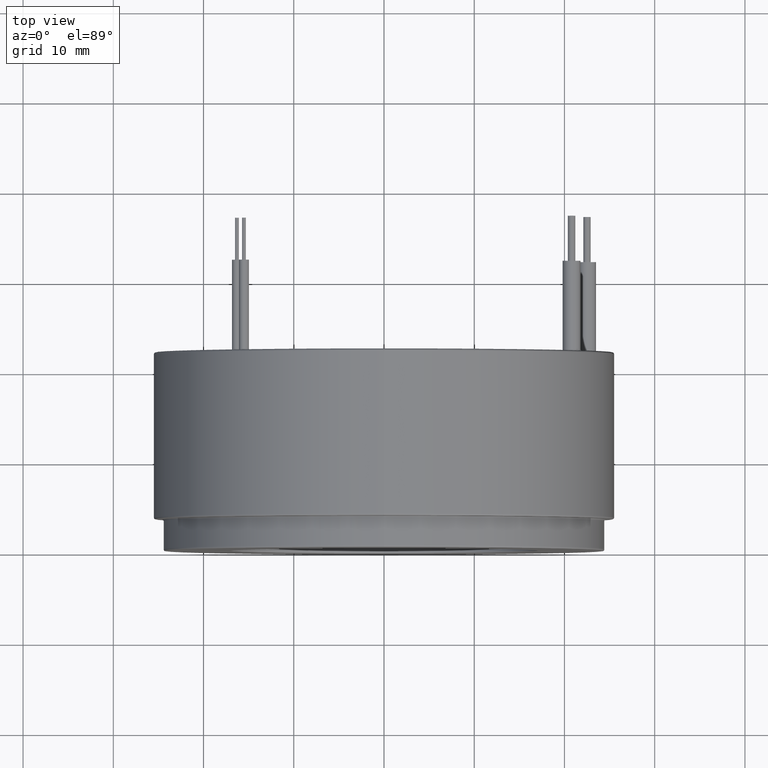
[diagram: clean part render]
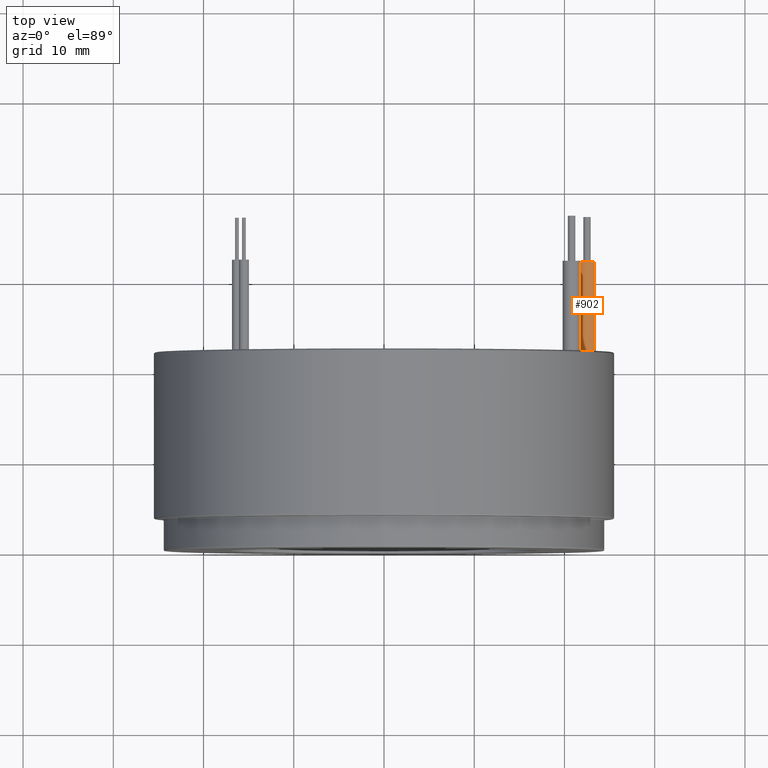
[diagram: same view with one face highlighted and labeled with its STEP entity id]
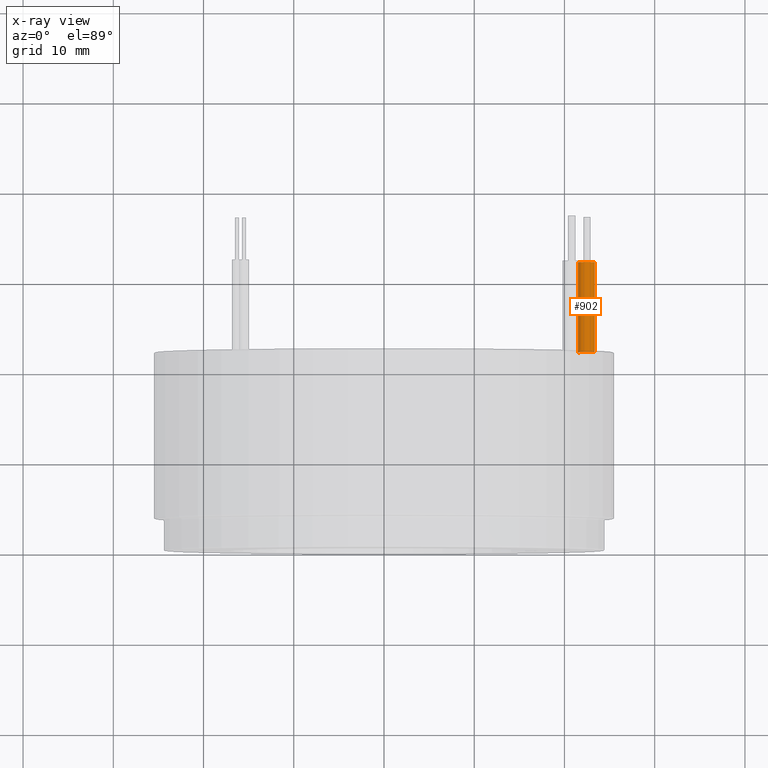
[diagram: x-ray of the same camera — body ghosted, the highlighted face saturated]
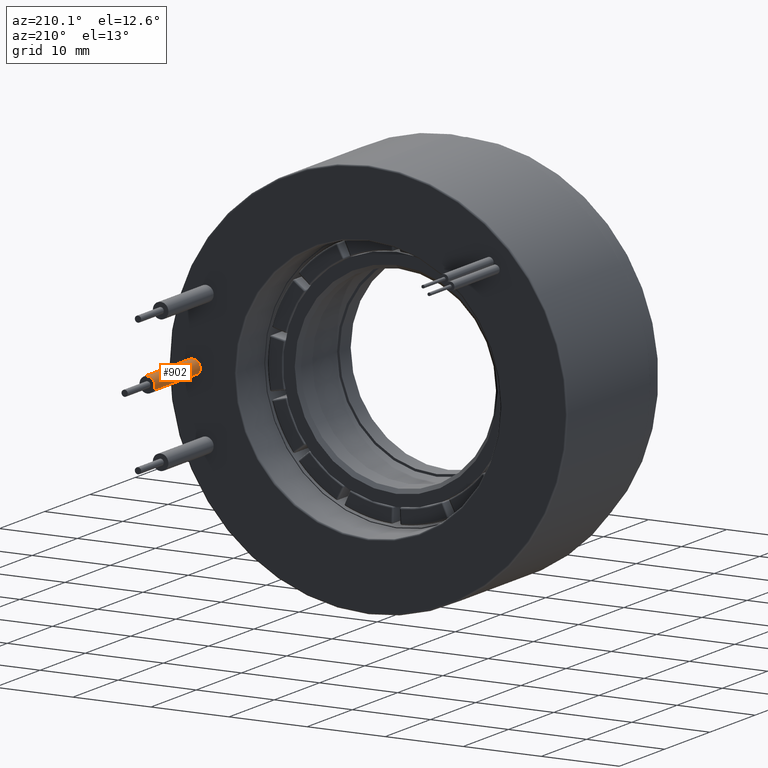
[diagram: same view with one face highlighted and labeled with its STEP entity id]
A machine part, top view. The second image highlights one B-rep face of the part: STEP entity #902.
The next image is the same camera in x-ray: the body ghosted, the highlighted face saturated — about 8% of this face is hidden behind the body in this view.
A second angle (auxiliary view) of the same face is appended — the face is thin or edge-on in the first view.
In plain terms, the highlighted cylindrical surface (edge-blend (fillet) strip) has radius 1 mm, axis along (-0, -1, -0).
Its self-contained STEP definition (entity closure, byte-faithful):
#5 = VERTEX_POINT ( 'NONE', #398 ) ;
#43 = VERTEX_POINT ( 'NONE', #2716 ) ;
#114 = CARTESIAN_POINT ( 'NONE',  ( 0.0000000000000000000, 5.421010862427522200E-017, 10.00000000000000000 ) ) ;
#266 = ORIENTED_EDGE ( 'NONE', *, *, #2048, .F. ) ;
#337 = DIRECTION ( 'NONE',  ( -0.0000000000000000000, -0.0000000000000000000, -1.000000000000000000 ) ) ;
#382 = CYLINDRICAL_SURFACE ( 'NONE', #2777, 1.000000000000000000 ) ;
#398 = CARTESIAN_POINT ( 'NONE',  ( 1.000000000000000000, 1.766747885390105400E-016, 10.00000000000000000 ) ) ;
#400 = DIRECTION ( 'NONE',  ( 0.0000000000000000000, 0.0000000000000000000, 1.000000000000000000 ) ) ;
#494 = AXIS2_PLACEMENT_3D ( 'NONE', #2469, #962, #2731 ) ;
#655 = DIRECTION ( 'NONE',  ( 1.000000000000000000, 0.0000000000000000000, 0.0000000000000000000 ) ) ;
#902 = ADVANCED_FACE ( 'NONE', ( #2583 ), #382, .T. ) ;
#948 = CARTESIAN_POINT ( 'NONE',  ( 0.0000000000000000000, 5.421010862427522200E-017, 10.00000000000000000 ) ) ;
#962 = DIRECTION ( 'NONE',  ( 0.0000000000000000000, 0.0000000000000000000, 1.000000000000000000 ) ) ;
#1174 = AXIS2_PLACEMENT_3D ( 'NONE', #948, #400, #655 ) ;
#1216 = LINE ( 'NONE', #2161, #1377 ) ;
#1258 = EDGE_LOOP ( 'NONE', ( #266, #3219, #2417, #2884 ) ) ;
#1377 = VECTOR ( 'NONE', #3180, 1000.000000000000000 ) ;
#1434 = LINE ( 'NONE', #1748, #3035 ) ;
#1528 = VERTEX_POINT ( 'NONE', #2907 ) ;
#1614 = EDGE_CURVE ( 'NONE', #43, #1930, #2714, .T. ) ;
#1637 = EDGE_CURVE ( 'NONE', #5, #43, #1434, .T. ) ;
#1748 = CARTESIAN_POINT ( 'NONE',  ( 1.000000000000000000, 1.766747885390105400E-016, 10.00000000000000000 ) ) ;
#1930 = VERTEX_POINT ( 'NONE', #2375 ) ;
#2001 = CIRCLE ( 'NONE', #1174, 1.000000000000000000 ) ;
#2048 = EDGE_CURVE ( 'NONE', #5, #1528, #2001, .T. ) ;
#2161 = CARTESIAN_POINT ( 'NONE',  ( -1.000000000000000000, 5.421010862427522200E-017, 10.00000000000000000 ) ) ;
#2375 = CARTESIAN_POINT ( 'NONE',  ( -1.000000000000000000, 5.421010862427522200E-017, 0.0000000000000000000 ) ) ;
#2417 = ORIENTED_EDGE ( 'NONE', *, *, #1614, .T. ) ;
#2469 = CARTESIAN_POINT ( 'NONE',  ( 0.0000000000000000000, 5.421010862427522200E-017, 0.0000000000000000000 ) ) ;
#2583 = FACE_OUTER_BOUND ( 'NONE', #1258, .T. ) ;
#2714 = CIRCLE ( 'NONE', #494, 1.000000000000000000 ) ;
#2716 = CARTESIAN_POINT ( 'NONE',  ( 1.000000000000000000, 1.766747885390105400E-016, 0.0000000000000000000 ) ) ;
#2731 = DIRECTION ( 'NONE',  ( 1.000000000000000000, 0.0000000000000000000, 0.0000000000000000000 ) ) ;
#2777 = AXIS2_PLACEMENT_3D ( 'NONE', #114, #337, #3127 ) ;
#2782 = DIRECTION ( 'NONE',  ( -0.0000000000000000000, -0.0000000000000000000, -1.000000000000000000 ) ) ;
#2882 = EDGE_CURVE ( 'NONE', #1528, #1930, #1216, .T. ) ;
#2884 = ORIENTED_EDGE ( 'NONE', *, *, #2882, .F. ) ;
#2907 = CARTESIAN_POINT ( 'NONE',  ( -1.000000000000000000, 5.421010862427522200E-017, 10.00000000000000000 ) ) ;
#3035 = VECTOR ( 'NONE', #2782, 1000.000000000000000 ) ;
#3127 = DIRECTION ( 'NONE',  ( -1.000000000000000000, 0.0000000000000000000, 0.0000000000000000000 ) ) ;
#3180 = DIRECTION ( 'NONE',  ( -0.0000000000000000000, -0.0000000000000000000, -1.000000000000000000 ) ) ;
#3219 = ORIENTED_EDGE ( 'NONE', *, *, #1637, .T. ) ;